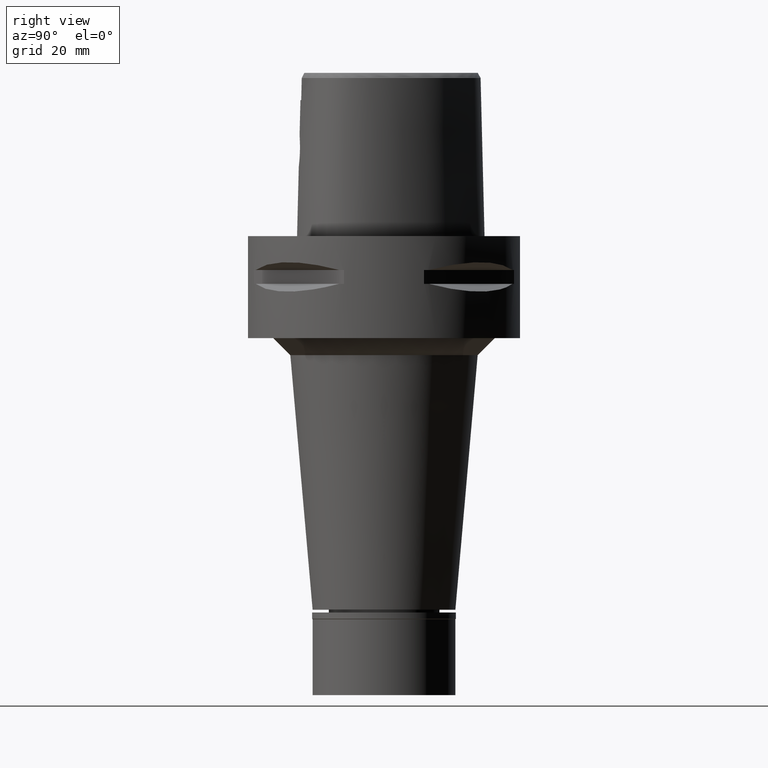
[diagram: clean part render]
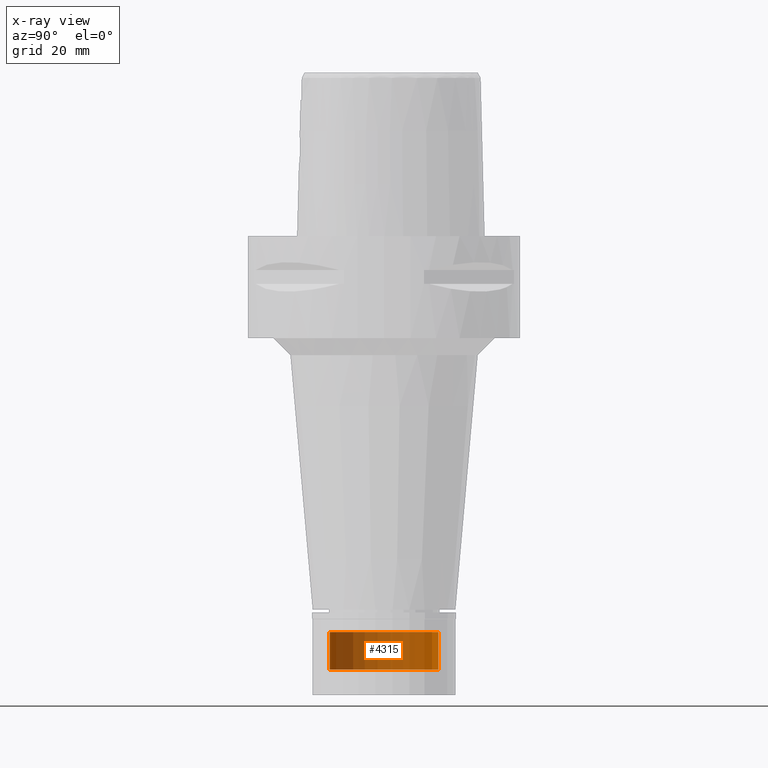
[diagram: x-ray — body ghosted, one internal face saturated and labeled with its STEP entity id]
A machine part, right view, then the same camera in x-ray: the body is ghosted and one INTERNAL B-rep face — a face not visible from any outside direction — is saturated and labeled: STEP entity #4315.
In plain terms, the highlighted cylindrical surface (partial cylindrical patch) has radius 16 mm, axis along (0, 0, -1).
Its self-contained STEP definition (entity closure, byte-faithful):
#2 = DIRECTION ( 'NONE',  ( 0.0000000000000000000, 0.0000000000000000000, 1.000000000000000000 ) ) ;
#212 = FACE_OUTER_BOUND ( 'NONE', #2270, .T. ) ;
#363 = CARTESIAN_POINT ( 'NONE',  ( 0.0000000000000000000, 1.302718032592999872E-14, -127.5000000000000000 ) ) ;
#447 = VERTEX_POINT ( 'NONE', #582 ) ;
#550 = ORIENTED_EDGE ( 'NONE', *, *, #2724, .T. ) ;
#582 = CARTESIAN_POINT ( 'NONE',  ( 0.0000000000000000000, 16.00000000000000000, -116.5000000000000000 ) ) ;
#942 = DIRECTION ( 'NONE',  ( 0.0000000000000000000, 0.0000000000000000000, -1.000000000000000000 ) ) ;
#968 = LINE ( 'NONE', #4521, #3039 ) ;
#999 = DIRECTION ( 'NONE',  ( 0.0000000000000000000, -1.000000000000000000, 0.0000000000000000000 ) ) ;
#1013 = VERTEX_POINT ( 'NONE', #2162 ) ;
#1146 = CIRCLE ( 'NONE', #5054, 16.00000000000000000 ) ;
#1179 = VERTEX_POINT ( 'NONE', #4669 ) ;
#1187 = ORIENTED_EDGE ( 'NONE', *, *, #4870, .F. ) ;
#1215 = EDGE_CURVE ( 'NONE', #1179, #4296, #1146, .T. ) ;
#1560 = EDGE_CURVE ( 'NONE', #1013, #447, #5139, .T. ) ;
#1581 = DIRECTION ( 'NONE',  ( 0.0000000000000000000, 0.0000000000000000000, -1.000000000000000000 ) ) ;
#1601 = LINE ( 'NONE', #3541, #1664 ) ;
#1664 = VECTOR ( 'NONE', #1581, 1000.000000000000000 ) ;
#1714 = DIRECTION ( 'NONE',  ( 0.0000000000000000000, -1.000000000000000000, 0.0000000000000000000 ) ) ;
#1803 = CARTESIAN_POINT ( 'NONE',  ( 0.0000000000000000000, 1.302718032592999872E-14, 6.375000000000000000 ) ) ;
#1950 = DIRECTION ( 'NONE',  ( 0.0000000000000000000, 1.000000000000000000, 0.0000000000000000000 ) ) ;
#2162 = CARTESIAN_POINT ( 'NONE',  ( 0.0000000000000000000, -16.00000000000000000, -116.5000000000000000 ) ) ;
#2270 = EDGE_LOOP ( 'NONE', ( #3484, #1187, #2333, #550 ) ) ;
#2333 = ORIENTED_EDGE ( 'NONE', *, *, #1560, .T. ) ;
#2588 = DIRECTION ( 'NONE',  ( 0.0000000000000000000, 0.0000000000000000000, -1.000000000000000000 ) ) ;
#2724 = EDGE_CURVE ( 'NONE', #447, #1179, #968, .T. ) ;
#2780 = CARTESIAN_POINT ( 'NONE',  ( 0.0000000000000000000, 1.302718032592999872E-14, -116.5000000000000000 ) ) ;
#3039 = VECTOR ( 'NONE', #942, 1000.000000000000000 ) ;
#3164 = AXIS2_PLACEMENT_3D ( 'NONE', #1803, #2588, #999 ) ;
#3369 = CYLINDRICAL_SURFACE ( 'NONE', #3164, 16.00000000000000000 ) ;
#3381 = AXIS2_PLACEMENT_3D ( 'NONE', #2780, #4464, #1714 ) ;
#3484 = ORIENTED_EDGE ( 'NONE', *, *, #1215, .T. ) ;
#3541 = CARTESIAN_POINT ( 'NONE',  ( 0.0000000000000000000, -16.00000000000000000, -116.5000000000000000 ) ) ;
#4296 = VERTEX_POINT ( 'NONE', #4680 ) ;
#4315 = ADVANCED_FACE ( 'NONE', ( #212 ), #3369, .T. ) ;
#4464 = DIRECTION ( 'NONE',  ( 0.0000000000000000000, 0.0000000000000000000, -1.000000000000000000 ) ) ;
#4521 = CARTESIAN_POINT ( 'NONE',  ( 0.0000000000000000000, 16.00000000000000000, -116.5000000000000000 ) ) ;
#4669 = CARTESIAN_POINT ( 'NONE',  ( 0.0000000000000000000, 16.00000000000000000, -127.5000000000000000 ) ) ;
#4680 = CARTESIAN_POINT ( 'NONE',  ( 0.0000000000000000000, -16.00000000000000000, -127.5000000000000000 ) ) ;
#4870 = EDGE_CURVE ( 'NONE', #1013, #4296, #1601, .T. ) ;
#5054 = AXIS2_PLACEMENT_3D ( 'NONE', #363, #2, #1950 ) ;
#5139 = CIRCLE ( 'NONE', #3381, 16.00000000000000000 ) ;